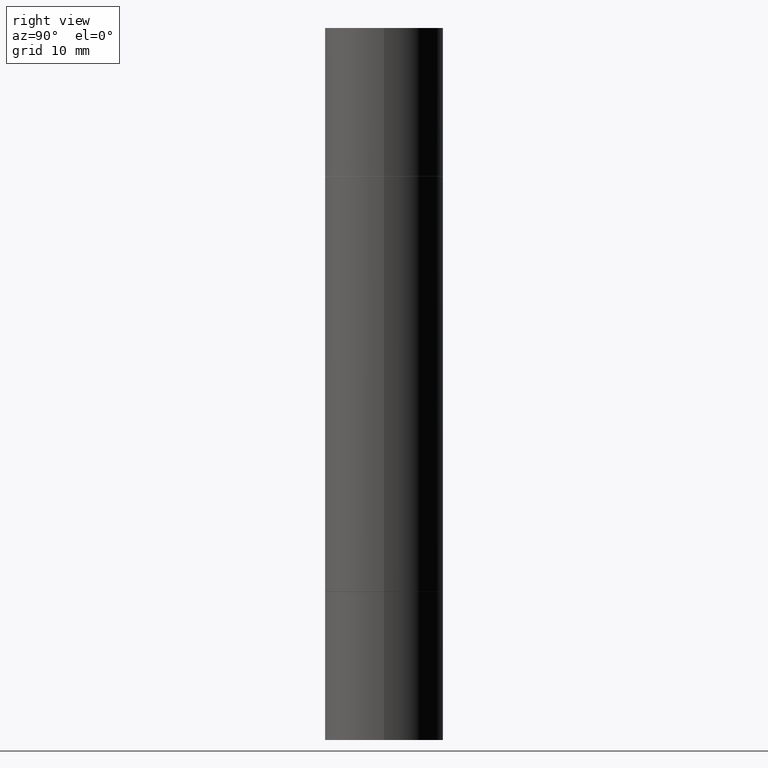
[diagram: clean part render]
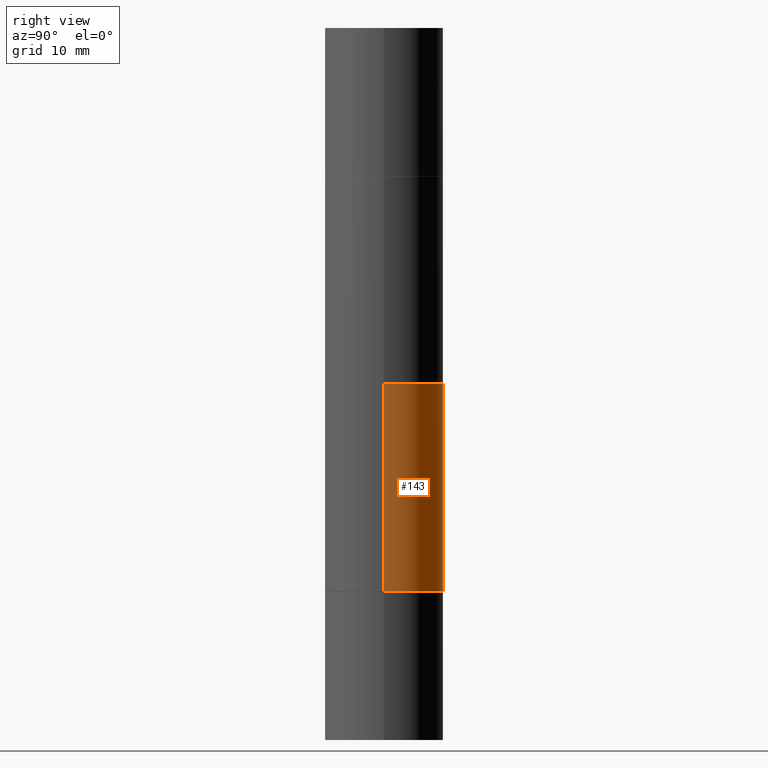
[diagram: same view with one face highlighted and labeled with its STEP entity id]
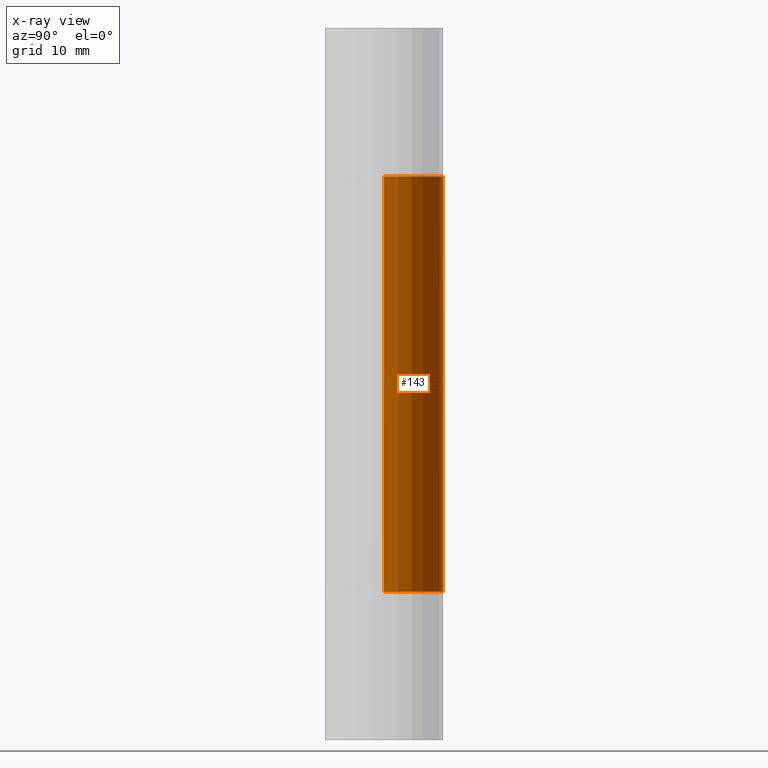
[diagram: x-ray of the same camera — body ghosted, the highlighted face saturated]
A machine part, right view. The second image highlights one B-rep face of the part: STEP entity #143.
The next image is the same camera in x-ray: the body ghosted, the highlighted face saturated — about 0% of this face is hidden behind the body in this view.
In plain terms, the highlighted cylindrical surface (partial cylindrical patch) has radius 6.35 mm, axis along (-0, -0, -1).
Its self-contained STEP definition (entity closure, byte-faithful):
#6 = DIRECTION ( 'NONE',  ( -2.445468806185136877E-29, -3.492890411551753071E-15, -1.000000000000000000 ) ) ;
#15 = CARTESIAN_POINT ( 'NONE',  ( 5.805542945883514935E-29, -2.184435788568482141E-15, -0.6259999999999990017 ) ) ;
#20 = DIRECTION ( 'NONE',  ( 1.000000000000000000, -6.982962677686266711E-15, 0.000000000000000000 ) ) ;
#84 = VERTEX_POINT ( 'NONE', #367 ) ;
#104 = CARTESIAN_POINT ( 'NONE',  ( -0.2500000000000000000, -4.693112891255996450E-16, -0.6259999999999990017 ) ) ;
#139 = AXIS2_PLACEMENT_3D ( 'NONE', #270, #327, #232 ) ;
#143 = ADVANCED_FACE ( 'NONE', ( #484 ), #230, .T. ) ;
#172 = EDGE_CURVE ( 'NONE', #84, #606, #400, .T. ) ;
#199 = ORIENTED_EDGE ( 'NONE', *, *, #667, .F. ) ;
#212 = EDGE_CURVE ( 'NONE', #84, #664, #480, .T. ) ;
#222 = LINE ( 'NONE', #531, #519 ) ;
#230 = CYLINDRICAL_SURFACE ( 'NONE', #139, 0.2499999999999998335 ) ;
#232 = DIRECTION ( 'NONE',  ( 1.000000000000000000, -6.982962677686267499E-15, 0.000000000000000000 ) ) ;
#240 = ORIENTED_EDGE ( 'NONE', *, *, #212, .T. ) ;
#270 = CARTESIAN_POINT ( 'NONE',  ( 0.000000000000000000, -1.047655762559234344E-14, -2.999999999999999112 ) ) ;
#275 = VECTOR ( 'NONE', #6, 39.37007874015748143 ) ;
#303 = CARTESIAN_POINT ( 'NONE',  ( -0.2500000000000000000, -3.522097508821832131E-15, -2.374000000000000110 ) ) ;
#304 = EDGE_LOOP ( 'NONE', ( #199, #559, #240, #488 ) ) ;
#309 = DIRECTION ( 'NONE',  ( 1.000000000000000000, -6.982962677686266711E-15, 0.000000000000000000 ) ) ;
#327 = DIRECTION ( 'NONE',  ( -2.445468806185136597E-29, -3.492890411551752677E-15, -1.000000000000000000 ) ) ;
#364 = CARTESIAN_POINT ( 'NONE',  ( 5.805542945883514935E-29, -8.288776698413628688E-15, -2.374000000000000110 ) ) ;
#367 = CARTESIAN_POINT ( 'NONE',  ( 0.2500000000000000000, -3.930176457990049608E-15, -0.6259999999999990017 ) ) ;
#374 = DIRECTION ( 'NONE',  ( -2.445468806185136877E-29, -3.492890411551753071E-15, -1.000000000000000000 ) ) ;
#391 = DIRECTION ( 'NONE',  ( 2.445468806185136597E-29, 3.492890411551752677E-15, 1.000000000000000000 ) ) ;
#400 = CIRCLE ( 'NONE', #485, 0.2500000000000000000 ) ;
#480 = LINE ( 'NONE', #530, #275 ) ;
#484 = FACE_OUTER_BOUND ( 'NONE', #304, .T. ) ;
#485 = AXIS2_PLACEMENT_3D ( 'NONE', #15, #391, #20 ) ;
#488 = ORIENTED_EDGE ( 'NONE', *, *, #639, .T. ) ;
#513 = VERTEX_POINT ( 'NONE', #303 ) ;
#519 = VECTOR ( 'NONE', #374, 39.37007874015748143 ) ;
#530 = CARTESIAN_POINT ( 'NONE',  ( 0.2499999999999998335, -1.222229829501391012E-14, -2.999999999999999112 ) ) ;
#531 = CARTESIAN_POINT ( 'NONE',  ( -0.2499999999999998335, -8.761433126149462132E-15, -2.999999999999999112 ) ) ;
#559 = ORIENTED_EDGE ( 'NONE', *, *, #172, .F. ) ;
#569 = DIRECTION ( 'NONE',  ( -2.445468806185136597E-29, 3.491481338843145583E-15, 1.000000000000000000 ) ) ;
#597 = CIRCLE ( 'NONE', #647, 0.2500000000000000000 ) ;
#606 = VERTEX_POINT ( 'NONE', #104 ) ;
#634 = CARTESIAN_POINT ( 'NONE',  ( 0.2500000000000000000, -1.003451736783519537E-14, -2.374000000000000110 ) ) ;
#639 = EDGE_CURVE ( 'NONE', #664, #513, #597, .T. ) ;
#647 = AXIS2_PLACEMENT_3D ( 'NONE', #364, #569, #309 ) ;
#664 = VERTEX_POINT ( 'NONE', #634 ) ;
#667 = EDGE_CURVE ( 'NONE', #606, #513, #222, .T. ) ;